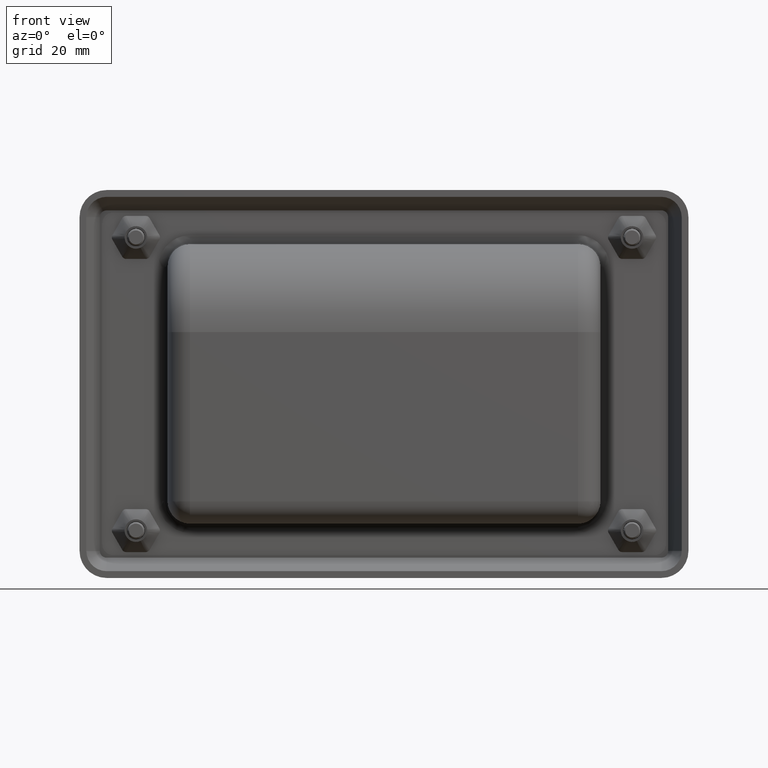
[diagram: clean part render]
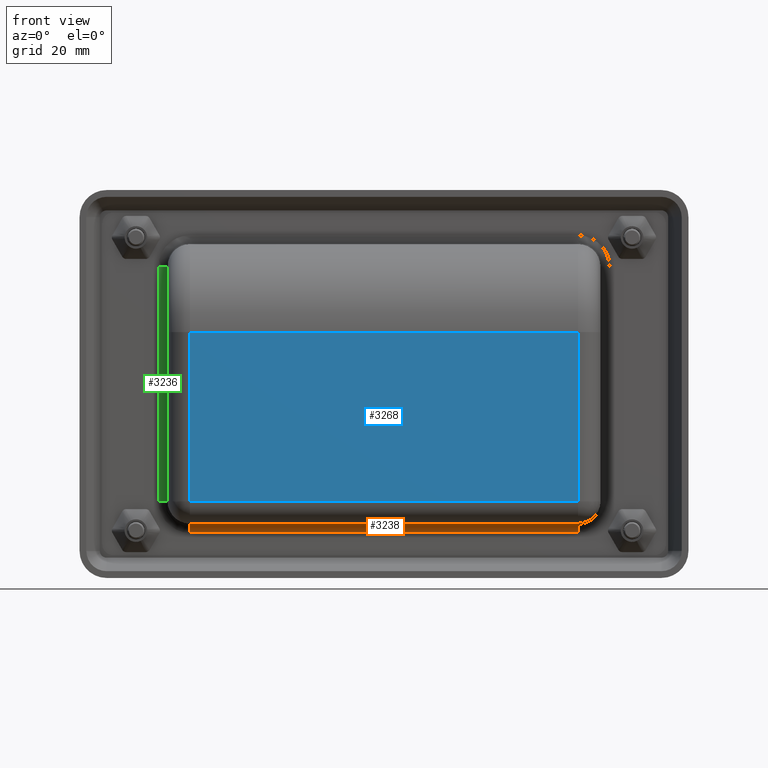
[diagram: same view with three faces highlighted in distinct colors, each labeled with its STEP entity id]
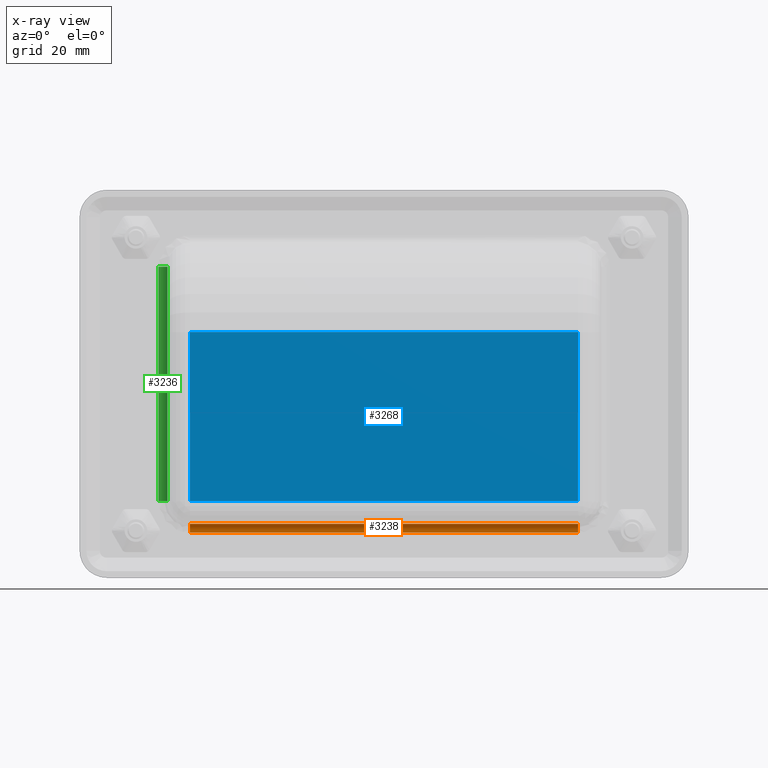
[diagram: x-ray of the same camera — body ghosted, the three highlighted faces saturated]
A machine part, front view with three faces highlighted in distinct colors.
The next image is the same camera in x-ray (body ghosted, the three faces saturated) — at least one of them is partly hidden behind the body in this view.
Their STEP definitions:

[orange] entity #3238 — the highlighted face is a freeform B-spline surface patch.
#89=B_SPLINE_SURFACE_WITH_KNOTS('',3,1,((#7154,#7155),(#7156,#7157),(#7158,
#7159),(#7160,#7161),(#7162,#7163),(#7164,#7165),(#7166,#7167),(#7168,#7169)),
 .UNSPECIFIED.,.F.,.F.,.F.,(4,1,1,1,1,4),(2,2),(0.,0.285714285714286,0.428571428571429,
0.571428571428571,0.857142857142857,1.),(0.,10.32),.UNSPECIFIED.);
#148=B_SPLINE_CURVE_WITH_KNOTS('',3,(#6870,#6871,#6872,#6873,#6874,#6875,
#6876,#6877),.UNSPECIFIED.,.F.,.F.,(4,1,1,1,1,4),(0.,0.285714285714286,
0.428571428571429,0.571428571428571,0.857142857142857,1.),.UNSPECIFIED.);
#155=B_SPLINE_CURVE_WITH_KNOTS('',3,(#7144,#7145,#7146,#7147,#7148,#7149,
#7150,#7151),.UNSPECIFIED.,.F.,.F.,(4,1,1,1,1,4),(-1.,-0.857142857142857,
-0.571428571428571,-0.428571428571429,-0.285714285714286,0.),
 .UNSPECIFIED.);
#423=FACE_OUTER_BOUND('',#642,.T.);
#642=EDGE_LOOP('',(#2806,#2807,#2808,#2809));
#900=LINE('',#7170,#1144);
#901=LINE('',#7171,#1145);
#1144=VECTOR('',#4251,86.);
#1145=VECTOR('',#4252,86.);
#1589=VERTEX_POINT('',#6868);
#1590=VERTEX_POINT('',#6869);
#1603=VERTEX_POINT('',#7142);
#1604=VERTEX_POINT('',#7143);
#2011=EDGE_CURVE('',#1589,#1590,#148,.T.);
#2030=EDGE_CURVE('',#1603,#1604,#155,.T.);
#2033=EDGE_CURVE('',#1603,#1590,#900,.T.);
#2034=EDGE_CURVE('',#1589,#1604,#901,.T.);
#2806=ORIENTED_EDGE('',*,*,#2030,.F.);
#2807=ORIENTED_EDGE('',*,*,#2033,.T.);
#2808=ORIENTED_EDGE('',*,*,#2011,.F.);
#2809=ORIENTED_EDGE('',*,*,#2034,.T.);
#3238=ADVANCED_FACE('',(#423),#89,.T.);
#4251=DIRECTION('',(1.,0.,0.));
#4252=DIRECTION('',(-1.,0.,0.));
#6868=CARTESIAN_POINT('',(43.,-2.,-31.));
#6869=CARTESIAN_POINT('',(43.,0.,-33.));
#6870=CARTESIAN_POINT('Ctrl Pts',(43.,-2.,-31.));
#6871=CARTESIAN_POINT('Ctrl Pts',(43.,-1.70080069965811,-31.));
#6872=CARTESIAN_POINT('Ctrl Pts',(43.,-1.25187620031755,-31.0222033752099));
#6873=CARTESIAN_POINT('Ctrl Pts',(43.,-0.692768602149364,-31.3365007526744));
#6874=CARTESIAN_POINT('Ctrl Pts',(43.,-0.211205081114927,-31.8148766596764));
#6875=CARTESIAN_POINT('Ctrl Pts',(43.,0.00334211089015276,-32.4092506257795));
#6876=CARTESIAN_POINT('Ctrl Pts',(43.,-4.36687723019228E-15,-32.8504003498291));
#6877=CARTESIAN_POINT('Ctrl Pts',(43.,-5.55111512312578E-15,-33.));
#7142=CARTESIAN_POINT('',(-43.,0.,-33.));
#7143=CARTESIAN_POINT('',(-43.,-2.,-31.));
#7144=CARTESIAN_POINT('Ctrl Pts',(-43.,-5.55111512312578E-15,-33.));
#7145=CARTESIAN_POINT('Ctrl Pts',(-43.,-4.36687723019228E-15,-32.8504003498291));
#7146=CARTESIAN_POINT('Ctrl Pts',(-43.,0.00334211089015276,-32.4092506257795));
#7147=CARTESIAN_POINT('Ctrl Pts',(-43.,-0.211205081114927,-31.8148766596764));
#7148=CARTESIAN_POINT('Ctrl Pts',(-43.,-0.692768602149364,-31.3365007526744));
#7149=CARTESIAN_POINT('Ctrl Pts',(-43.,-1.25187620031755,-31.0222033752099));
#7150=CARTESIAN_POINT('Ctrl Pts',(-43.,-1.70080069965811,-31.));
#7151=CARTESIAN_POINT('Ctrl Pts',(-43.,-2.,-31.));
#7154=CARTESIAN_POINT('Ctrl Pts',(43.,0.,-33.));
#7155=CARTESIAN_POINT('Ctrl Pts',(-60.2,0.,-33.));
#7156=CARTESIAN_POINT('Ctrl Pts',(43.,0.,-32.7008006996581));
#7157=CARTESIAN_POINT('Ctrl Pts',(-60.2,0.,-32.7008006996581));
#7158=CARTESIAN_POINT('Ctrl Pts',(43.,-0.0221852949644495,-32.2518908552422));
#7159=CARTESIAN_POINT('Ctrl Pts',(-60.2,-0.0221852949644495,-32.2518908552422));
#7160=CARTESIAN_POINT('Ctrl Pts',(43.,-0.336484375822677,-31.6927829600961));
#7161=CARTESIAN_POINT('Ctrl Pts',(-60.2,-0.336484375822677,-31.6927829600961));
#7162=CARTESIAN_POINT('Ctrl Pts',(43.,-0.814861970497193,-31.2112174820483));
#7163=CARTESIAN_POINT('Ctrl Pts',(-60.2,-0.814861970497193,-31.2112174820483));
#7164=CARTESIAN_POINT('Ctrl Pts',(43.,-1.40924681431404,-30.9966615646652));
#7165=CARTESIAN_POINT('Ctrl Pts',(-60.2,-1.40924681431404,-30.9966615646652));
#7166=CARTESIAN_POINT('Ctrl Pts',(43.,-1.85040034982906,-31.));
#7167=CARTESIAN_POINT('Ctrl Pts',(-60.2,-1.85040034982906,-31.));
#7168=CARTESIAN_POINT('Ctrl Pts',(43.,-2.,-31.));
#7169=CARTESIAN_POINT('Ctrl Pts',(-60.2,-2.,-31.));
#7170=CARTESIAN_POINT('',(-24.,0.,-33.));
#7171=CARTESIAN_POINT('',(-24.,-2.,-31.));

[blue] entity #3268 — the highlighted planar face has unit normal (0, -1, 0).
#266=PLANE('',#3571);
#453=FACE_OUTER_BOUND('',#677,.T.);
#677=EDGE_LOOP('',(#2985,#2986,#2987,#2988));
#915=LINE('',#7230,#1159);
#917=LINE('',#7233,#1161);
#919=LINE('',#7243,#1163);
#930=LINE('',#7287,#1174);
#1159=VECTOR('',#4316,37.5);
#1161=VECTOR('',#4320,86.);
#1163=VECTOR('',#4334,37.5);
#1174=VECTOR('',#4395,86.);
#1619=VERTEX_POINT('',#7210);
#1620=VERTEX_POINT('',#7214);
#1623=VERTEX_POINT('',#7224);
#1626=VERTEX_POINT('',#7239);
#2063=EDGE_CURVE('',#1623,#1620,#915,.T.);
#2065=EDGE_CURVE('',#1620,#1619,#917,.T.);
#2070=EDGE_CURVE('',#1619,#1626,#919,.T.);
#2092=EDGE_CURVE('',#1623,#1626,#930,.T.);
#2985=ORIENTED_EDGE('',*,*,#2063,.F.);
#2986=ORIENTED_EDGE('',*,*,#2092,.T.);
#2987=ORIENTED_EDGE('',*,*,#2070,.F.);
#2988=ORIENTED_EDGE('',*,*,#2065,.F.);
#3268=ADVANCED_FACE('',(#453),#266,.T.);
#3571=AXIS2_PLACEMENT_3D('',#7289,#4398,#4399);
#4316=DIRECTION('',(0.,0.,-1.));
#4320=DIRECTION('',(-1.,0.,0.));
#4334=DIRECTION('',(0.,0.,1.));
#4395=DIRECTION('',(-1.,0.,0.));
#4398=DIRECTION('center_axis',(0.,-1.,0.));
#4399=DIRECTION('ref_axis',(0.,0.,-1.));
#7210=CARTESIAN_POINT('',(-43.,-24.,-26.));
#7214=CARTESIAN_POINT('',(43.,-24.,-26.));
#7224=CARTESIAN_POINT('',(43.,-24.,11.5));
#7230=CARTESIAN_POINT('',(43.,-24.,-15.5));
#7233=CARTESIAN_POINT('',(-24.,-24.,-26.));
#7239=CARTESIAN_POINT('',(-43.,-24.,11.5));
#7243=CARTESIAN_POINT('',(-43.,-24.,15.5));
#7287=CARTESIAN_POINT('',(0.,-24.,11.5));
#7289=CARTESIAN_POINT('Origin',(0.,-24.,4.44089209850063E-15));

[green] entity #3236 — the highlighted face is a freeform B-spline surface patch.
#87=B_SPLINE_SURFACE_WITH_KNOTS('',3,1,((#7066,#7067),(#7068,#7069),(#7070,
#7071),(#7072,#7073),(#7074,#7075),(#7076,#7077),(#7078,#7079),(#7080,#7081)),
 .UNSPECIFIED.,.F.,.F.,.F.,(4,1,1,1,1,4),(2,2),(0.,0.285714285714286,0.428571428571429,
0.571428571428571,0.857142857142857,1.),(0.,6.24),.UNSPECIFIED.);
#153=B_SPLINE_CURVE_WITH_KNOTS('',3,(#7056,#7057,#7058,#7059,#7060,#7061,
#7062,#7063),.UNSPECIFIED.,.F.,.F.,(4,1,1,1,1,4),(-1.,-0.857142857142857,
-0.571428571428571,-0.428571428571429,-0.285714285714286,0.),
 .UNSPECIFIED.);
#154=B_SPLINE_CURVE_WITH_KNOTS('',3,(#7084,#7085,#7086,#7087,#7088,#7089,
#7090,#7091),.UNSPECIFIED.,.F.,.F.,(4,1,1,1,1,4),(0.,0.285714285714286,
0.428571428571429,0.571428571428571,0.857142857142857,1.),.UNSPECIFIED.);
#421=FACE_OUTER_BOUND('',#640,.T.);
#640=EDGE_LOOP('',(#2798,#2799,#2800,#2801));
#898=LINE('',#7092,#1142);
#899=LINE('',#7093,#1143);
#1142=VECTOR('',#4245,52.);
#1143=VECTOR('',#4246,52.);
#1599=VERTEX_POINT('',#7054);
#1600=VERTEX_POINT('',#7055);
#1601=VERTEX_POINT('',#7082);
#1602=VERTEX_POINT('',#7083);
#2024=EDGE_CURVE('',#1599,#1600,#153,.T.);
#2027=EDGE_CURVE('',#1601,#1602,#154,.T.);
#2028=EDGE_CURVE('',#1602,#1600,#898,.T.);
#2029=EDGE_CURVE('',#1599,#1601,#899,.T.);
#2798=ORIENTED_EDGE('',*,*,#2027,.T.);
#2799=ORIENTED_EDGE('',*,*,#2028,.T.);
#2800=ORIENTED_EDGE('',*,*,#2024,.F.);
#2801=ORIENTED_EDGE('',*,*,#2029,.T.);
#3236=ADVANCED_FACE('',(#421),#87,.T.);
#4245=DIRECTION('',(0.,0.,1.));
#4246=DIRECTION('',(0.,0.,-1.));
#7054=CARTESIAN_POINT('',(-50.,0.,26.));
#7055=CARTESIAN_POINT('',(-48.,-2.,26.));
#7056=CARTESIAN_POINT('Ctrl Pts',(-50.,-5.55111512312578E-15,26.));
#7057=CARTESIAN_POINT('Ctrl Pts',(-49.8504003498291,-4.36687723019228E-15,
26.));
#7058=CARTESIAN_POINT('Ctrl Pts',(-49.4092506257795,0.0033421108901528,
26.));
#7059=CARTESIAN_POINT('Ctrl Pts',(-48.8148766596764,-0.211205081114927,
26.));
#7060=CARTESIAN_POINT('Ctrl Pts',(-48.3365007526744,-0.692768602149364,
26.));
#7061=CARTESIAN_POINT('Ctrl Pts',(-48.0222033752099,-1.25187620031755,26.));
#7062=CARTESIAN_POINT('Ctrl Pts',(-48.,-1.70080069965811,26.));
#7063=CARTESIAN_POINT('Ctrl Pts',(-48.,-2.,26.));
#7066=CARTESIAN_POINT('Ctrl Pts',(-50.,0.,-26.));
#7067=CARTESIAN_POINT('Ctrl Pts',(-50.,0.,36.4));
#7068=CARTESIAN_POINT('Ctrl Pts',(-49.7008006996581,0.,-26.));
#7069=CARTESIAN_POINT('Ctrl Pts',(-49.7008006996581,0.,36.4));
#7070=CARTESIAN_POINT('Ctrl Pts',(-49.2518908552422,-0.0221852949644495,
-26.));
#7071=CARTESIAN_POINT('Ctrl Pts',(-49.2518908552422,-0.0221852949644495,
36.4));
#7072=CARTESIAN_POINT('Ctrl Pts',(-48.6927829600961,-0.336484375822677,
-26.));
#7073=CARTESIAN_POINT('Ctrl Pts',(-48.6927829600961,-0.336484375822677,
36.4));
#7074=CARTESIAN_POINT('Ctrl Pts',(-48.2112174820483,-0.814861970497193,
-26.));
#7075=CARTESIAN_POINT('Ctrl Pts',(-48.2112174820483,-0.814861970497193,
36.4));
#7076=CARTESIAN_POINT('Ctrl Pts',(-47.9966615646653,-1.40924681431404,-26.));
#7077=CARTESIAN_POINT('Ctrl Pts',(-47.9966615646653,-1.40924681431404,36.4));
#7078=CARTESIAN_POINT('Ctrl Pts',(-48.,-1.85040034982906,-26.));
#7079=CARTESIAN_POINT('Ctrl Pts',(-48.,-1.85040034982906,36.4));
#7080=CARTESIAN_POINT('Ctrl Pts',(-48.,-2.,-26.));
#7081=CARTESIAN_POINT('Ctrl Pts',(-48.,-2.,36.4));
#7082=CARTESIAN_POINT('',(-50.,0.,-26.));
#7083=CARTESIAN_POINT('',(-48.,-2.,-26.));
#7084=CARTESIAN_POINT('Ctrl Pts',(-50.,0.,-26.));
#7085=CARTESIAN_POINT('Ctrl Pts',(-49.7008006996581,0.,-26.));
#7086=CARTESIAN_POINT('Ctrl Pts',(-49.2518908552422,-0.0221852949644495,
-26.));
#7087=CARTESIAN_POINT('Ctrl Pts',(-48.6927829600961,-0.336484375822677,
-26.));
#7088=CARTESIAN_POINT('Ctrl Pts',(-48.2112174820483,-0.814861970497193,
-26.));
#7089=CARTESIAN_POINT('Ctrl Pts',(-47.9966615646653,-1.40924681431404,-26.));
#7090=CARTESIAN_POINT('Ctrl Pts',(-48.,-1.85040034982906,-26.));
#7091=CARTESIAN_POINT('Ctrl Pts',(-48.,-2.,-26.));
#7092=CARTESIAN_POINT('',(-48.,-2.,15.5));
#7093=CARTESIAN_POINT('',(-50.,0.,15.5));